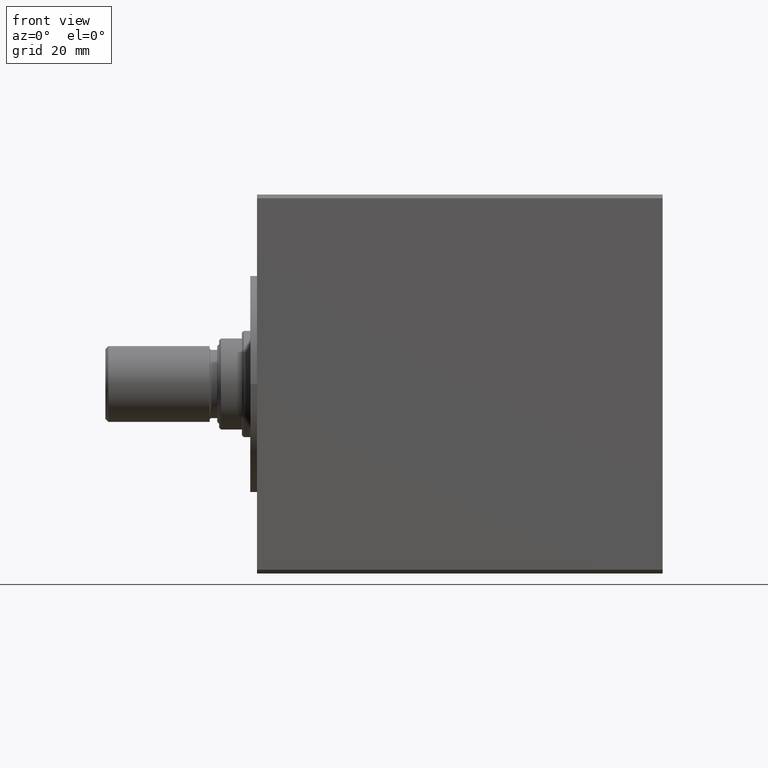
[diagram: clean part render]
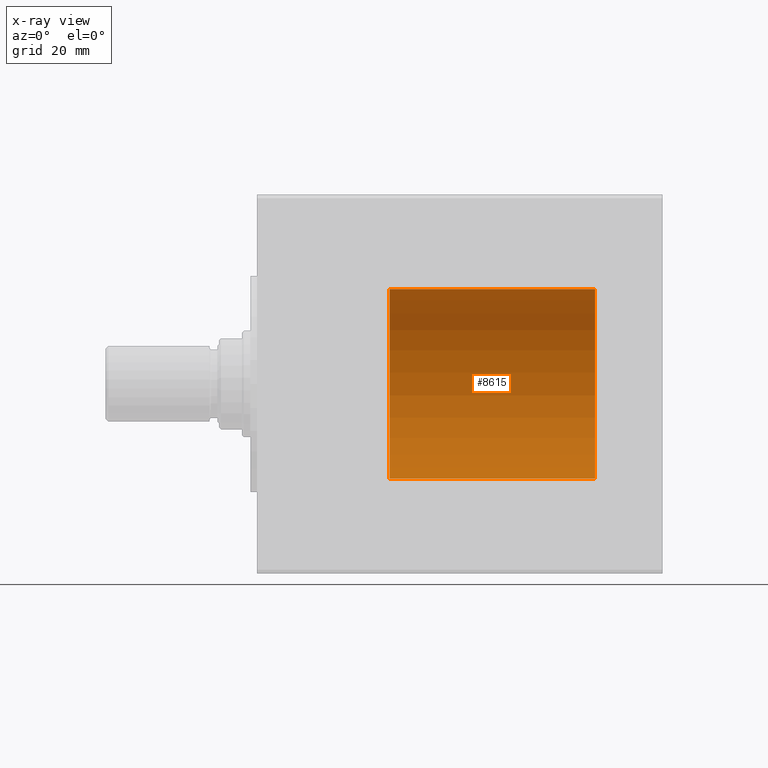
[diagram: x-ray — body ghosted, one internal face saturated and labeled with its STEP entity id]
A machine part, front view, then the same camera in x-ray: the body is ghosted and one INTERNAL B-rep face — a face not visible from any outside direction — is saturated and labeled: STEP entity #8615.
In plain terms, the highlighted cylindrical surface (partial cylindrical patch) has radius 25 mm, axis along (1, -0, -0).
Its self-contained STEP definition (entity closure, byte-faithful):
#288 = DIRECTION ( 'NONE',  ( -1.000000000000000000, 0.000000000000000000, 0.000000000000000000 ) ) ;
#511 = CYLINDRICAL_SURFACE ( 'NONE', #33935, 25.00000000000000000 ) ;
#3254 = DIRECTION ( 'NONE',  ( 0.000000000000000000, 0.000000000000000000, 1.000000000000000000 ) ) ;
#3776 = AXIS2_PLACEMENT_3D ( 'NONE', #43952, #3254, #26884 ) ;
#3991 = DIRECTION ( 'NONE',  ( 1.000000000000000000, 0.000000000000000000, 0.000000000000000000 ) ) ;
#5059 = EDGE_CURVE ( 'NONE', #34207, #24490, #8825, .T. ) ;
#6934 = CARTESIAN_POINT ( 'NONE',  ( 25.00000000000000000, 3.061616997868382254E-15, 54.20000000000000284 ) ) ;
#7369 = CARTESIAN_POINT ( 'NONE',  ( 0.000000000000000000, 0.000000000000000000, 0.000000000000000000 ) ) ;
#8556 = VECTOR ( 'NONE', #16087, 1000.000000000000000 ) ;
#8615 = ADVANCED_FACE ( 'NONE', ( #38060 ), #511, .T. ) ;
#8825 = CIRCLE ( 'NONE', #3776, 25.00000000000000000 ) ;
#9472 = EDGE_LOOP ( 'NONE', ( #32488, #40795, #20183, #35095 ) ) ;
#9503 = DIRECTION ( 'NONE',  ( -0.000000000000000000, -0.000000000000000000, -1.000000000000000000 ) ) ;
#10435 = CARTESIAN_POINT ( 'NONE',  ( 0.000000000000000000, 0.000000000000000000, 54.20000000000000284 ) ) ;
#11854 = CARTESIAN_POINT ( 'NONE',  ( 25.00000000000000000, 3.061616997868382254E-15, 54.20000000000000284 ) ) ;
#15193 = CARTESIAN_POINT ( 'NONE',  ( -25.00000000000000000, 0.000000000000000000, 54.20000000000000284 ) ) ;
#15537 = CARTESIAN_POINT ( 'NONE',  ( -25.00000000000000000, 0.000000000000000000, 54.20000000000000284 ) ) ;
#16087 = DIRECTION ( 'NONE',  ( -0.000000000000000000, -0.000000000000000000, -1.000000000000000000 ) ) ;
#16235 = VERTEX_POINT ( 'NONE', #18366 ) ;
#18366 = CARTESIAN_POINT ( 'NONE',  ( 25.00000000000000000, 3.061616997868382254E-15, 0.000000000000000000 ) ) ;
#19408 = AXIS2_PLACEMENT_3D ( 'NONE', #7369, #32297, #3991 ) ;
#20183 = ORIENTED_EDGE ( 'NONE', *, *, #29703, .T. ) ;
#22785 = VERTEX_POINT ( 'NONE', #29535 ) ;
#23928 = DIRECTION ( 'NONE',  ( -0.000000000000000000, -0.000000000000000000, -1.000000000000000000 ) ) ;
#24207 = VECTOR ( 'NONE', #9503, 1000.000000000000000 ) ;
#24490 = VERTEX_POINT ( 'NONE', #15537 ) ;
#26884 = DIRECTION ( 'NONE',  ( 1.000000000000000000, 0.000000000000000000, 0.000000000000000000 ) ) ;
#28729 = CIRCLE ( 'NONE', #19408, 25.00000000000000000 ) ;
#29535 = CARTESIAN_POINT ( 'NONE',  ( -25.00000000000000000, 0.000000000000000000, 0.000000000000000000 ) ) ;
#29703 = EDGE_CURVE ( 'NONE', #16235, #22785, #28729, .T. ) ;
#31209 = LINE ( 'NONE', #6934, #24207 ) ;
#32297 = DIRECTION ( 'NONE',  ( 0.000000000000000000, 0.000000000000000000, 1.000000000000000000 ) ) ;
#32488 = ORIENTED_EDGE ( 'NONE', *, *, #5059, .F. ) ;
#33144 = LINE ( 'NONE', #15193, #8556 ) ;
#33935 = AXIS2_PLACEMENT_3D ( 'NONE', #10435, #23928, #288 ) ;
#34207 = VERTEX_POINT ( 'NONE', #11854 ) ;
#34830 = EDGE_CURVE ( 'NONE', #34207, #16235, #31209, .T. ) ;
#35095 = ORIENTED_EDGE ( 'NONE', *, *, #40721, .F. ) ;
#38060 = FACE_OUTER_BOUND ( 'NONE', #9472, .T. ) ;
#40721 = EDGE_CURVE ( 'NONE', #24490, #22785, #33144, .T. ) ;
#40795 = ORIENTED_EDGE ( 'NONE', *, *, #34830, .T. ) ;
#43952 = CARTESIAN_POINT ( 'NONE',  ( 0.000000000000000000, 0.000000000000000000, 54.20000000000000284 ) ) ;